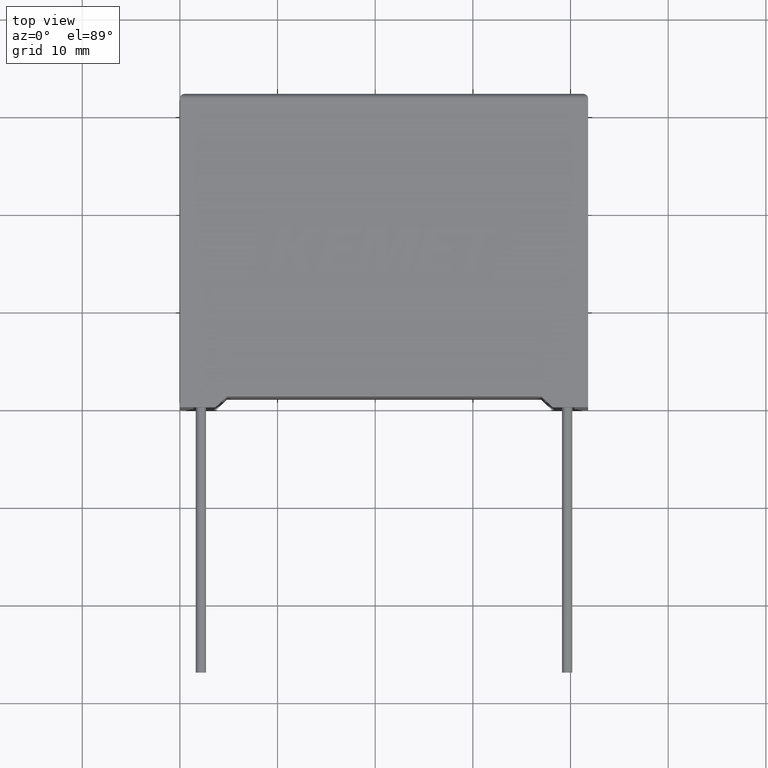
[diagram: clean part render]
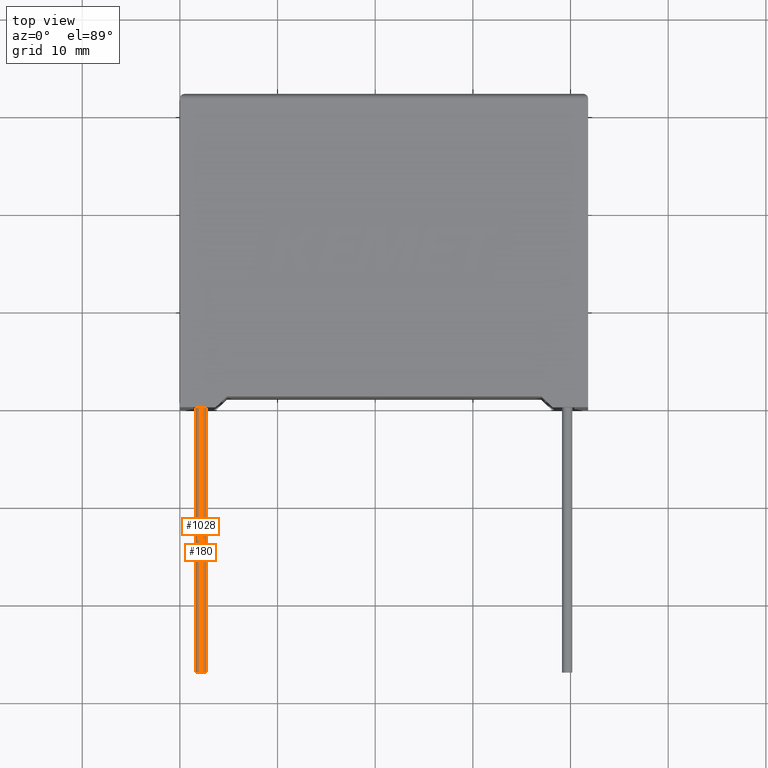
[diagram: same view with one multi-face feature highlighted, each face labeled with its STEP entity id]
A machine part, top view. The highlighted faces form ONE feature: a constant-radius fillet chain: 2 tangent blend faces with common blend radius 0.525 mm. The faces share edges in the B-rep.
Their STEP definitions:
[1] entity #1028 (Cylinder):
#45 = ORIENTED_EDGE ( 'NONE', *, *, #2845, .T. ) ;
#86 = CARTESIAN_POINT ( 'NONE',  ( 2.149999999999999023, -27.00000000000000000, 9.599999999999999645 ) ) ;
#99 = EDGE_CURVE ( 'NONE', #2140, #1269, #2438, .T. ) ;
#148 = CARTESIAN_POINT ( 'NONE',  ( 2.149999999999999023, 0.7500000000000000000, 9.599999999999999645 ) ) ;
#167 = DIRECTION ( 'NONE',  ( -0.000000000000000000, 1.000000000000000000, -0.000000000000000000 ) ) ;
#226 = EDGE_CURVE ( 'NONE', #2732, #1269, #1088, .T. ) ;
#265 = CIRCLE ( 'NONE', #1771, 0.5249999999999994671 ) ;
#449 = CARTESIAN_POINT ( 'NONE',  ( 2.149999999999999023, -27.00000000000000000, 10.12499999999999822 ) ) ;
#461 = EDGE_LOOP ( 'NONE', ( #1767, #2037, #45, #1666 ) ) ;
#576 = CARTESIAN_POINT ( 'NONE',  ( 2.149999999999999023, -27.00000000000000000, 9.599999999999999645 ) ) ;
#627 = VECTOR ( 'NONE', #1404, 1000.000000000000000 ) ;
#644 = CARTESIAN_POINT ( 'NONE',  ( 2.149999999999999023, -27.00000000000000000, 10.12499999999999822 ) ) ;
#779 = CARTESIAN_POINT ( 'NONE',  ( 2.149999999999999023, 0.7500000000000000000, 9.074999999999999289 ) ) ;
#785 = EDGE_CURVE ( 'NONE', #1814, #2140, #265, .T. ) ;
#969 = CYLINDRICAL_SURFACE ( 'NONE', #1147, 0.5249999999999994671 ) ;
#1028 = ADVANCED_FACE ( 'NONE', ( #1420 ), #969, .T. ) ;
#1088 = CIRCLE ( 'NONE', #2217, 0.5249999999999994671 ) ;
#1092 = DIRECTION ( 'NONE',  ( 0.000000000000000000, 0.000000000000000000, 1.000000000000000000 ) ) ;
#1147 = AXIS2_PLACEMENT_3D ( 'NONE', #576, #1795, #1092 ) ;
#1229 = DIRECTION ( 'NONE',  ( 0.000000000000000000, -1.000000000000000000, 0.000000000000000000 ) ) ;
#1269 = VERTEX_POINT ( 'NONE', #779 ) ;
#1404 = DIRECTION ( 'NONE',  ( -0.000000000000000000, 1.000000000000000000, -0.000000000000000000 ) ) ;
#1420 = FACE_OUTER_BOUND ( 'NONE', #461, .T. ) ;
#1436 = VECTOR ( 'NONE', #167, 1000.000000000000000 ) ;
#1666 = ORIENTED_EDGE ( 'NONE', *, *, #226, .T. ) ;
#1767 = ORIENTED_EDGE ( 'NONE', *, *, #99, .F. ) ;
#1771 = AXIS2_PLACEMENT_3D ( 'NONE', #86, #1229, #1925 ) ;
#1795 = DIRECTION ( 'NONE',  ( -0.000000000000000000, 1.000000000000000000, -0.000000000000000000 ) ) ;
#1814 = VERTEX_POINT ( 'NONE', #644 ) ;
#1916 = CARTESIAN_POINT ( 'NONE',  ( 2.149999999999999023, 0.7500000000000000000, 10.12499999999999822 ) ) ;
#1925 = DIRECTION ( 'NONE',  ( 0.000000000000000000, 0.000000000000000000, -1.000000000000000000 ) ) ;
#2037 = ORIENTED_EDGE ( 'NONE', *, *, #785, .F. ) ;
#2140 = VERTEX_POINT ( 'NONE', #2309 ) ;
#2217 = AXIS2_PLACEMENT_3D ( 'NONE', #148, #2385, #2363 ) ;
#2309 = CARTESIAN_POINT ( 'NONE',  ( 2.149999999999999023, -27.00000000000000000, 9.074999999999999289 ) ) ;
#2363 = DIRECTION ( 'NONE',  ( 0.000000000000000000, 0.000000000000000000, -1.000000000000000000 ) ) ;
#2385 = DIRECTION ( 'NONE',  ( 0.000000000000000000, -1.000000000000000000, 0.000000000000000000 ) ) ;
#2438 = LINE ( 'NONE', #2983, #1436 ) ;
#2557 = LINE ( 'NONE', #449, #627 ) ;
#2732 = VERTEX_POINT ( 'NONE', #1916 ) ;
#2845 = EDGE_CURVE ( 'NONE', #1814, #2732, #2557, .T. ) ;
#2983 = CARTESIAN_POINT ( 'NONE',  ( 2.149999999999999023, -27.00000000000000000, 9.074999999999999289 ) ) ;
[2] entity #180 (Cylinder):
#99 = EDGE_CURVE ( 'NONE', #2140, #1269, #2438, .T. ) ;
#115 = CARTESIAN_POINT ( 'NONE',  ( 2.149999999999999023, -27.00000000000000000, 9.599999999999999645 ) ) ;
#167 = DIRECTION ( 'NONE',  ( -0.000000000000000000, 1.000000000000000000, -0.000000000000000000 ) ) ;
#180 = ADVANCED_FACE ( 'NONE', ( #968 ), #3060, .T. ) ;
#258 = CARTESIAN_POINT ( 'NONE',  ( 2.149999999999999023, -27.00000000000000000, 9.599999999999999645 ) ) ;
#322 = EDGE_LOOP ( 'NONE', ( #2293, #2789, #1921, #2046 ) ) ;
#329 = AXIS2_PLACEMENT_3D ( 'NONE', #2278, #599, #1563 ) ;
#449 = CARTESIAN_POINT ( 'NONE',  ( 2.149999999999999023, -27.00000000000000000, 10.12499999999999822 ) ) ;
#590 = DIRECTION ( 'NONE',  ( 0.000000000000000000, 0.000000000000000000, -1.000000000000000000 ) ) ;
#599 = DIRECTION ( 'NONE',  ( 0.000000000000000000, -1.000000000000000000, 0.000000000000000000 ) ) ;
#627 = VECTOR ( 'NONE', #1404, 1000.000000000000000 ) ;
#644 = CARTESIAN_POINT ( 'NONE',  ( 2.149999999999999023, -27.00000000000000000, 10.12499999999999822 ) ) ;
#705 = AXIS2_PLACEMENT_3D ( 'NONE', #258, #2112, #2606 ) ;
#779 = CARTESIAN_POINT ( 'NONE',  ( 2.149999999999999023, 0.7500000000000000000, 9.074999999999999289 ) ) ;
#920 = EDGE_CURVE ( 'NONE', #2140, #1814, #3013, .T. ) ;
#968 = FACE_OUTER_BOUND ( 'NONE', #322, .T. ) ;
#1269 = VERTEX_POINT ( 'NONE', #779 ) ;
#1404 = DIRECTION ( 'NONE',  ( -0.000000000000000000, 1.000000000000000000, -0.000000000000000000 ) ) ;
#1436 = VECTOR ( 'NONE', #167, 1000.000000000000000 ) ;
#1563 = DIRECTION ( 'NONE',  ( 0.000000000000000000, 0.000000000000000000, -1.000000000000000000 ) ) ;
#1814 = VERTEX_POINT ( 'NONE', #644 ) ;
#1881 = CIRCLE ( 'NONE', #329, 0.5249999999999994671 ) ;
#1916 = CARTESIAN_POINT ( 'NONE',  ( 2.149999999999999023, 0.7500000000000000000, 10.12499999999999822 ) ) ;
#1921 = ORIENTED_EDGE ( 'NONE', *, *, #3028, .T. ) ;
#2046 = ORIENTED_EDGE ( 'NONE', *, *, #2845, .F. ) ;
#2112 = DIRECTION ( 'NONE',  ( -0.000000000000000000, 1.000000000000000000, -0.000000000000000000 ) ) ;
#2140 = VERTEX_POINT ( 'NONE', #2309 ) ;
#2278 = CARTESIAN_POINT ( 'NONE',  ( 2.149999999999999023, 0.7500000000000000000, 9.599999999999999645 ) ) ;
#2293 = ORIENTED_EDGE ( 'NONE', *, *, #920, .F. ) ;
#2309 = CARTESIAN_POINT ( 'NONE',  ( 2.149999999999999023, -27.00000000000000000, 9.074999999999999289 ) ) ;
#2438 = LINE ( 'NONE', #2983, #1436 ) ;
#2557 = LINE ( 'NONE', #449, #627 ) ;
#2606 = DIRECTION ( 'NONE',  ( 0.000000000000000000, 0.000000000000000000, 1.000000000000000000 ) ) ;
#2698 = DIRECTION ( 'NONE',  ( 0.000000000000000000, -1.000000000000000000, 0.000000000000000000 ) ) ;
#2732 = VERTEX_POINT ( 'NONE', #1916 ) ;
#2789 = ORIENTED_EDGE ( 'NONE', *, *, #99, .T. ) ;
#2845 = EDGE_CURVE ( 'NONE', #1814, #2732, #2557, .T. ) ;
#2866 = AXIS2_PLACEMENT_3D ( 'NONE', #115, #2698, #590 ) ;
#2983 = CARTESIAN_POINT ( 'NONE',  ( 2.149999999999999023, -27.00000000000000000, 9.074999999999999289 ) ) ;
#3013 = CIRCLE ( 'NONE', #2866, 0.5249999999999994671 ) ;
#3028 = EDGE_CURVE ( 'NONE', #1269, #2732, #1881, .T. ) ;
#3060 = CYLINDRICAL_SURFACE ( 'NONE', #705, 0.5249999999999994671 ) ;